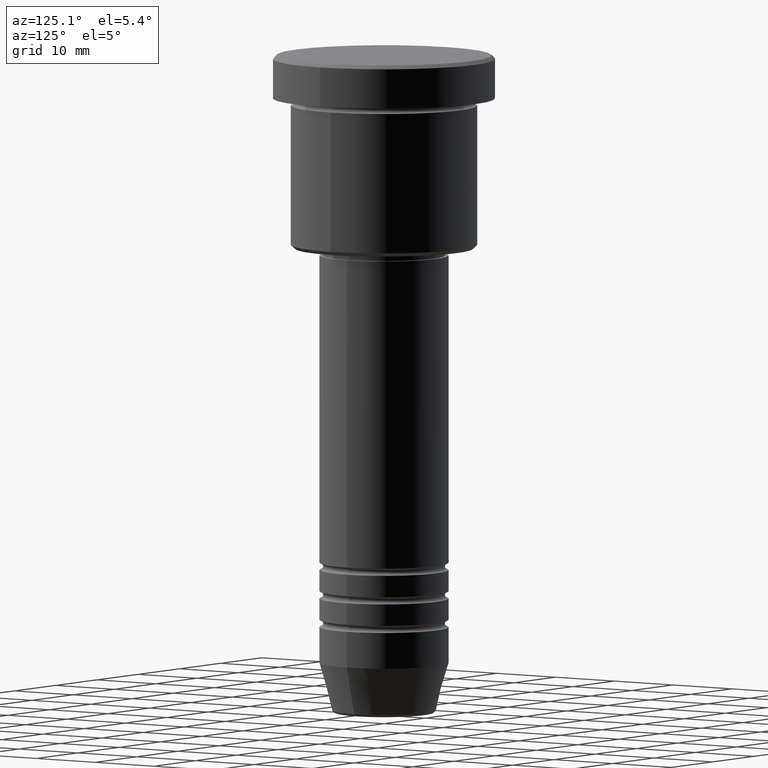
[diagram: clean part render]
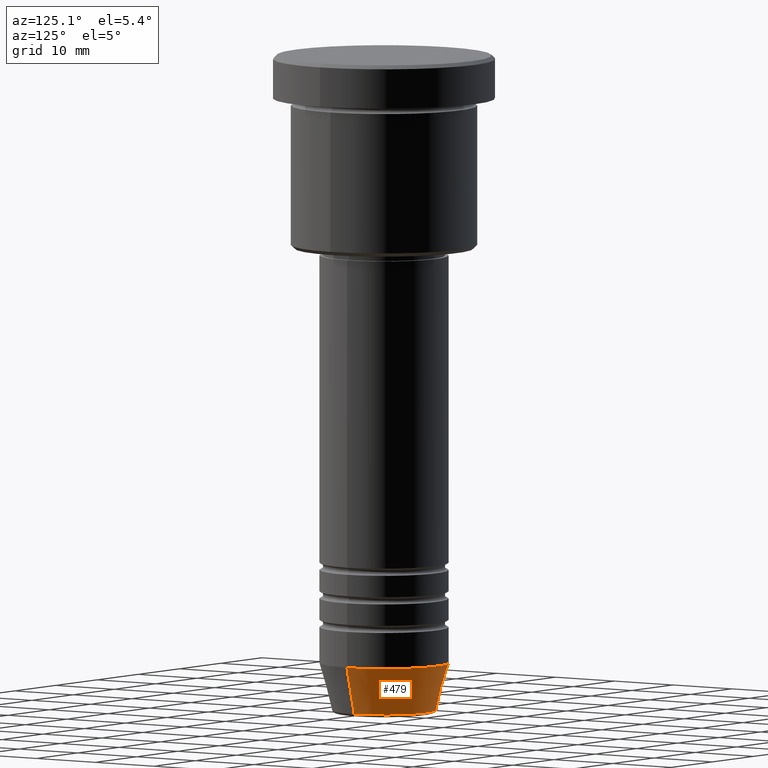
[diagram: same view with one face highlighted and labeled with its STEP entity id]
A machine part, auxiliary view. The second image highlights one B-rep face of the part: STEP entity #479.
In plain terms, the highlighted conical surface has half-angle 15 deg.
Its self-contained STEP definition (entity closure, byte-faithful):
#26 = EDGE_CURVE ( 'NONE', #422, #989, #939, .T. ) ;
#50 = CARTESIAN_POINT ( 'NONE',  ( 9.000000000000000000, 0.000000000000000000, -85.00000000000000000 ) ) ;
#55 = CARTESIAN_POINT ( 'NONE',  ( 7.223655072137193045, 0.000000000000000000, -91.62940952255124216 ) ) ;
#143 = DIRECTION ( 'NONE',  ( 0.2588190451025213501, 0.000000000000000000, 0.9659258262890680902 ) ) ;
#151 = ORIENTED_EDGE ( 'NONE', *, *, #1109, .F. ) ;
#157 = FACE_OUTER_BOUND ( 'NONE', #1176, .T. ) ;
#168 = VERTEX_POINT ( 'NONE', #55 ) ;
#192 = DIRECTION ( 'NONE',  ( -0.2588190451025213501, 3.169619151431772337E-17, 0.9659258262890680902 ) ) ;
#217 = DIRECTION ( 'NONE',  ( -0.000000000000000000, -0.000000000000000000, 1.000000000000000000 ) ) ;
#220 = CIRCLE ( 'NONE', #742, 7.223655072137193045 ) ;
#234 = DIRECTION ( 'NONE',  ( -0.000000000000000000, -0.000000000000000000, 1.000000000000000000 ) ) ;
#251 = CARTESIAN_POINT ( 'NONE',  ( -7.223655072137193045, 9.934123627281767082E-16, -91.62940952255124216 ) ) ;
#253 = EDGE_CURVE ( 'NONE', #902, #989, #545, .T. ) ;
#310 = VECTOR ( 'NONE', #192, 1000.000000000000000 ) ;
#331 = DIRECTION ( 'NONE',  ( -0.000000000000000000, -0.000000000000000000, 1.000000000000000000 ) ) ;
#356 = ORIENTED_EDGE ( 'NONE', *, *, #253, .F. ) ;
#386 = CARTESIAN_POINT ( 'NONE',  ( -9.000000000000000000, 1.102182119232617714E-15, -85.00000000000000000 ) ) ;
#421 = CARTESIAN_POINT ( 'NONE',  ( 0.000000000000000000, 0.000000000000000000, -91.62940952255124216 ) ) ;
#422 = VERTEX_POINT ( 'NONE', #251 ) ;
#431 = AXIS2_PLACEMENT_3D ( 'NONE', #1061, #234, #1155 ) ;
#479 = ADVANCED_FACE ( 'NONE', ( #157 ), #973, .T. ) ;
#512 = DIRECTION ( 'NONE',  ( 1.000000000000000000, 0.000000000000000000, 0.000000000000000000 ) ) ;
#545 = CIRCLE ( 'NONE', #1082, 9.000000000000000000 ) ;
#594 = ORIENTED_EDGE ( 'NONE', *, *, #26, .T. ) ;
#742 = AXIS2_PLACEMENT_3D ( 'NONE', #421, #331, #512 ) ;
#826 = EDGE_CURVE ( 'NONE', #168, #422, #220, .T. ) ;
#875 = LINE ( 'NONE', #50, #1128 ) ;
#902 = VERTEX_POINT ( 'NONE', #935 ) ;
#935 = CARTESIAN_POINT ( 'NONE',  ( 9.000000000000000000, 0.000000000000000000, -85.00000000000000000 ) ) ;
#939 = LINE ( 'NONE', #386, #310 ) ;
#947 = CARTESIAN_POINT ( 'NONE',  ( -9.000000000000000000, 1.102182119232617714E-15, -85.00000000000000000 ) ) ;
#973 = CONICAL_SURFACE ( 'NONE', #431, 9.000000000000000000, 0.2617993877991500740 ) ;
#989 = VERTEX_POINT ( 'NONE', #947 ) ;
#1042 = CARTESIAN_POINT ( 'NONE',  ( 0.000000000000000000, 0.000000000000000000, -85.00000000000000000 ) ) ;
#1061 = CARTESIAN_POINT ( 'NONE',  ( 0.000000000000000000, 0.000000000000000000, -85.00000000000000000 ) ) ;
#1062 = DIRECTION ( 'NONE',  ( 1.000000000000000000, 0.000000000000000000, 0.000000000000000000 ) ) ;
#1075 = ORIENTED_EDGE ( 'NONE', *, *, #826, .T. ) ;
#1082 = AXIS2_PLACEMENT_3D ( 'NONE', #1042, #217, #1062 ) ;
#1109 = EDGE_CURVE ( 'NONE', #168, #902, #875, .T. ) ;
#1128 = VECTOR ( 'NONE', #143, 1000.000000000000000 ) ;
#1155 = DIRECTION ( 'NONE',  ( 1.000000000000000000, 0.000000000000000000, 0.000000000000000000 ) ) ;
#1176 = EDGE_LOOP ( 'NONE', ( #1075, #594, #356, #151 ) ) ;